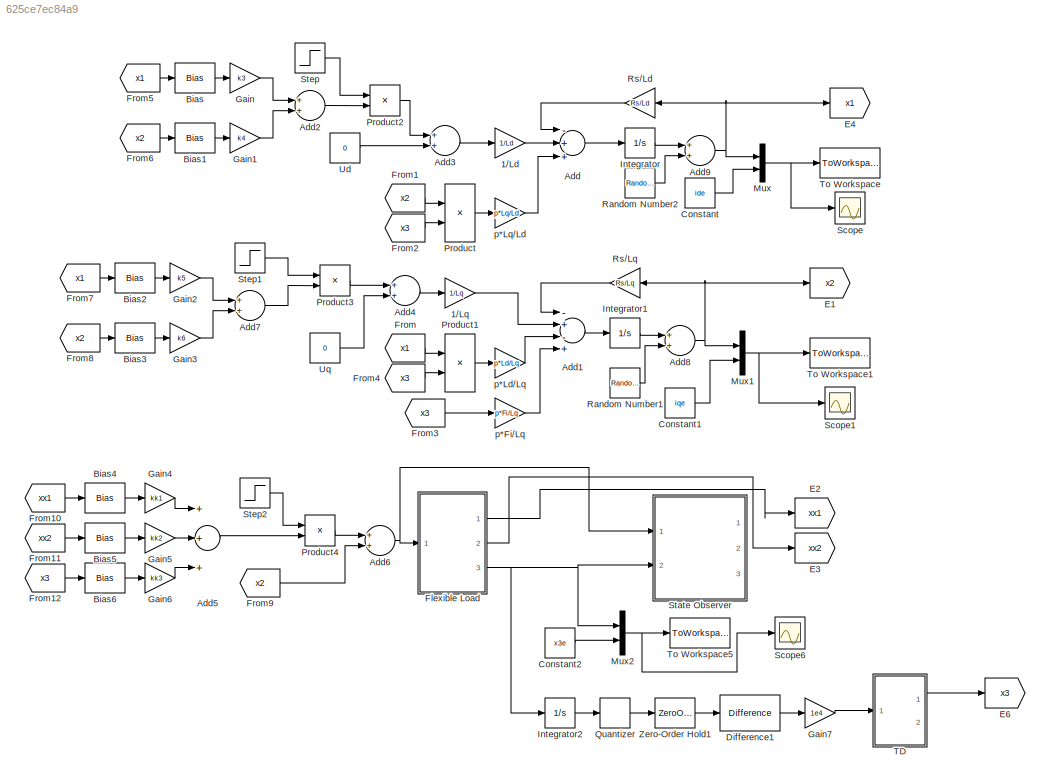
MODEL slx_625ce7ec84a9
KIND model
CONFIG AbsTol = auto
CONFIG EnableMultiTasking = off
CONFIG FixedStep = 1e-4
CONFIG InitFcn = Rs = 0.011\nLd = 0.018\nLq = 0.018\nFi = 0.055\np = 4\nJ = 0.102\nb = 0.18\n\nA1 = 1\nB1 = -5000\nB2 = -0.0200 \nB3 = 10\nC1 = 500\nC2 = -2.499999800000000e+04\nC3 = -90.999999999999990 \nC4 = 110\n\ntC = 20\nkk1 = -211\nkk2 = -15\nkk3 = -2.3\nk3 = -1.586440829524976\nk4 = -0.541242258944882\nk5 = -0.541242258944882\nk6 = -0.328094464592671\n\nx1e = 0.001479483606571\nx2e = 0\nx3e = 0.739741803285525\nide = 2.930555555555555\n...<+110ch>
CONFIG MaxStep = 1e-4
CONFIG MinStep = 1e-8
CONFIG RelTol = 1e-10
CONFIG SampleTimeConstraint = Unconstrained
CONFIG Solver = ode4
CONFIG SolverName = ode4
CONFIG StartTime = 0.0
CONFIG StopTime = 50
BLOCK [Gain] 1//Ld
  Gain = 1/Ld
  OutDataTypeStr = Inherit: Inherit via internal rule
  ParamDataTypeStr = Inherit: Inherit via internal rule
  SaturateOnIntegerOverflow = off
BLOCK [Gain] 1//Lq
  Gain = 1/Lq
  OutDataTypeStr = Inherit: Inherit via internal rule
  ParamDataTypeStr = Inherit: Inherit via internal rule
  SaturateOnIntegerOverflow = off
BLOCK [Sum] Add
  InputSameDT = off
  Inputs = -++
  OutDataTypeStr = Inherit: Inherit via internal rule
  Ports = [3, 1]
  SaturateOnIntegerOverflow = off
BLOCK [Sum] Add1
  InputSameDT = off
  Inputs = -+-+
  OutDataTypeStr = Inherit: Inherit via internal rule
  Ports = [4, 1]
  SaturateOnIntegerOverflow = off
BLOCK [Sum] Add2
  InputSameDT = off
  OutDataTypeStr = Inherit: Inherit via internal rule
  Ports = [2, 1]
  SaturateOnIntegerOverflow = off
BLOCK [Sum] Add3
  InputSameDT = off
  OutDataTypeStr = Inherit: Inherit via internal rule
  Ports = [2, 1]
  SaturateOnIntegerOverflow = off
BLOCK [Sum] Add4
  InputSameDT = off
  OutDataTypeStr = Inherit: Inherit via internal rule
  Ports = [2, 1]
  SaturateOnIntegerOverflow = off
BLOCK [Sum] Add5
  InputSameDT = off
  Inputs = +++
  OutDataTypeStr = Inherit: Inherit via internal rule
  Ports = [3, 1]
  SaturateOnIntegerOverflow = off
BLOCK [Sum] Add6
  InputSameDT = off
  OutDataTypeStr = Inherit: Inherit via internal rule
  Ports = [2, 1]
  SaturateOnIntegerOverflow = off
BLOCK [Sum] Add7
  InputSameDT = off
  OutDataTypeStr = Inherit: Inherit via internal rule
  Ports = [2, 1]
  SaturateOnIntegerOverflow = off
BLOCK [Sum] Add8
  InputSameDT = off
  OutDataTypeStr = Inherit: Inherit via internal rule
  Ports = [2, 1]
  SaturateOnIntegerOverflow = off
BLOCK [Sum] Add9
  InputSameDT = off
  OutDataTypeStr = Inherit: Inherit via internal rule
  Ports = [2, 1]
  SaturateOnIntegerOverflow = off
BLOCK [Bias] Bias
  Bias = -ide
  SaturateOnIntegerOverflow = off
BLOCK [Bias] Bias1
  Bias = -iqe
  SaturateOnIntegerOverflow = off
BLOCK [Bias] Bias2
  Bias = -ide
  SaturateOnIntegerOverflow = off
BLOCK [Bias] Bias3
  Bias = -iqe
  SaturateOnIntegerOverflow = off
BLOCK [Bias] Bias4
  Bias = -x1e
  SaturateOnIntegerOverflow = off
BLOCK [Bias] Bias5
  Bias = -x2e
  SaturateOnIntegerOverflow = off
BLOCK [Bias] Bias6
  Bias = -x3e
  SaturateOnIntegerOverflow = off
BLOCK [Constant] Constant
  Value = ide
BLOCK [Constant] Constant1
  Value = iqe
BLOCK [Constant] Constant2
  Value = x3e
BLOCK [Reference] Difference1  REF=simulink/Discrete/Difference
  Ports = [1, 1]
  SourceBlock = simulink/Discrete/Difference
  SourceProductBaseCode = SL
  SourceProductName = Simulink
  SourceType = Difference
BLOCK [Goto] E1
  GotoTag = x2
BLOCK [Goto] E2
  GotoTag = xx1
BLOCK [Goto] E3
  GotoTag = xx2
BLOCK [Goto] E4
  GotoTag = x1
BLOCK [Goto] E6
  GotoTag = x3
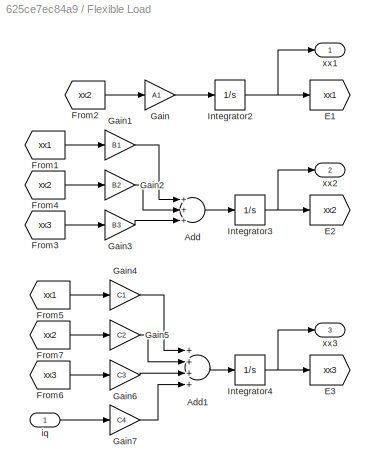
BLOCK [SubSystem] Flexible Load
  Ports = [1, 3]
  RequestExecContextInheritance = off
BLOCK [Sum] Flexible Load/Add
  InputSameDT = off
  Inputs = +++
  OutDataTypeStr = Inherit: Inherit via internal rule
  Ports = [3, 1]
  SaturateOnIntegerOverflow = off
BLOCK [Sum] Flexible Load/Add1
  InputSameDT = off
  Inputs = ++++
  OutDataTypeStr = Inherit: Inherit via internal rule
  Ports = [4, 1]
  SaturateOnIntegerOverflow = off
BLOCK [Goto] Flexible Load/E1
  GotoTag = xx1
BLOCK [Goto] Flexible Load/E2
  GotoTag = xx2
BLOCK [Goto] Flexible Load/E3
  GotoTag = xx3
BLOCK [From] Flexible Load/From1
  GotoTag = xx1
BLOCK [From] Flexible Load/From2
  GotoTag = xx2
BLOCK [From] Flexible Load/From3
  GotoTag = xx3
BLOCK [From] Flexible Load/From4
  GotoTag = xx2
BLOCK [From] Flexible Load/From5
  GotoTag = xx1
BLOCK [From] Flexible Load/From6
  GotoTag = xx3
BLOCK [From] Flexible Load/From7
  GotoTag = xx2
BLOCK [Gain] Flexible Load/Gain
  Gain = A1
  OutDataTypeStr = Inherit: Inherit via internal rule
  ParamDataTypeStr = Inherit: Inherit via internal rule
  SaturateOnIntegerOverflow = off
BLOCK [Gain] Flexible Load/Gain1
  Gain = B1
  OutDataTypeStr = Inherit: Inherit via internal rule
  ParamDataTypeStr = Inherit: Inherit via internal rule
  SaturateOnIntegerOverflow = off
BLOCK [Gain] Flexible Load/Gain2
  Gain = B2
  OutDataTypeStr = Inherit: Inherit via internal rule
  ParamDataTypeStr = Inherit: Inherit via internal rule
  SaturateOnIntegerOverflow = off
BLOCK [Gain] Flexible Load/Gain3
  Gain = B3
  OutDataTypeStr = Inherit: Inherit via internal rule
  ParamDataTypeStr = Inherit: Inherit via internal rule
  SaturateOnIntegerOverflow = off
BLOCK [Gain] Flexible Load/Gain4
  Gain = C1
  OutDataTypeStr = Inherit: Inherit via internal rule
  ParamDataTypeStr = Inherit: Inherit via internal rule
  SaturateOnIntegerOverflow = off
BLOCK [Gain] Flexible Load/Gain5
  Gain = C2
  OutDataTypeStr = Inherit: Inherit via internal rule
  ParamDataTypeStr = Inherit: Inherit via internal rule
  SaturateOnIntegerOverflow = off
BLOCK [Gain] Flexible Load/Gain6
  Gain = C3
  OutDataTypeStr = Inherit: Inherit via internal rule
  ParamDataTypeStr = Inherit: Inherit via internal rule
  SaturateOnIntegerOverflow = off
BLOCK [Gain] Flexible Load/Gain7
  Gain = C4
  OutDataTypeStr = Inherit: Inherit via internal rule
  ParamDataTypeStr = Inherit: Inherit via internal rule
  SaturateOnIntegerOverflow = off
BLOCK [Integrator] Flexible Load/Integrator2
  Ports = [1, 1]
BLOCK [Integrator] Flexible Load/Integrator3
  Ports = [1, 1]
BLOCK [Integrator] Flexible Load/Integrator4
  Ports = [1, 1]
BLOCK [Inport] Flexible Load/iq
  IconDisplay = Port number
BLOCK [Outport] Flexible Load/xx1
  IconDisplay = Port number
BLOCK [Outport] Flexible Load/xx2
  IconDisplay = Port number
  Port = 2
BLOCK [Outport] Flexible Load/xx3
  IconDisplay = Port number
  Port = 3
BLOCK [From] From
  GotoTag = x1
BLOCK [From] From1
  GotoTag = x2
BLOCK [From] From10
  GotoTag = xx1
BLOCK [From] From11
  GotoTag = xx2
BLOCK [From] From12
  GotoTag = x3
BLOCK [From] From2
  GotoTag = x3
BLOCK [From] From3
  GotoTag = x3
BLOCK [From] From4
  GotoTag = x3
BLOCK [From] From5
  GotoTag = x1
BLOCK [From] From6
  GotoTag = x2
BLOCK [From] From7
  GotoTag = x1
BLOCK [From] From8
  GotoTag = x2
BLOCK [From] From9
  GotoTag = x2
BLOCK [Gain] Gain
  Gain = k3
  OutDataTypeStr = Inherit: Inherit via internal rule
  ParamDataTypeStr = Inherit: Inherit via internal rule
  SaturateOnIntegerOverflow = off
BLOCK [Gain] Gain1
  Gain = k4
  OutDataTypeStr = Inherit: Inherit via internal rule
  ParamDataTypeStr = Inherit: Inherit via internal rule
  SaturateOnIntegerOverflow = off
BLOCK [Gain] Gain2
  Gain = k5
  OutDataTypeStr = Inherit: Inherit via internal rule
  ParamDataTypeStr = Inherit: Inherit via internal rule
  SaturateOnIntegerOverflow = off
BLOCK [Gain] Gain3
  Gain = k6
  OutDataTypeStr = Inherit: Inherit via internal rule
  ParamDataTypeStr = Inherit: Inherit via internal rule
  SaturateOnIntegerOverflow = off
BLOCK [Gain] Gain4
  Gain = kk1
  OutDataTypeStr = Inherit: Inherit via internal rule
  ParamDataTypeStr = Inherit: Inherit via internal rule
  SaturateOnIntegerOverflow = off
BLOCK [Gain] Gain5
  Gain = kk2
  OutDataTypeStr = Inherit: Inherit via internal rule
  ParamDataTypeStr = Inherit: Inherit via internal rule
  SaturateOnIntegerOverflow = off
BLOCK [Gain] Gain6
  Gain = kk3
  OutDataTypeStr = Inherit: Inherit via internal rule
  ParamDataTypeStr = Inherit: Inherit via internal rule
  SaturateOnIntegerOverflow = off
BLOCK [Gain] Gain7
  Gain = 1e4
  OutDataTypeStr = Inherit: Inherit via internal rule
  ParamDataTypeStr = Inherit: Inherit via internal rule
  SaturateOnIntegerOverflow = off
BLOCK [Integrator] Integrator
  InitialCondition = 0.15
  Ports = [1, 1]
BLOCK [Integrator] Integrator1
  InitialCondition = 0.14
  Ports = [1, 1]
BLOCK [Integrator] Integrator2
  Ports = [1, 1]
BLOCK [Mux] Mux
  DisplayOption = bar
  Inputs = 2
  Ports = [2, 1]
BLOCK [Mux] Mux1
  DisplayOption = bar
  Inputs = 2
  Ports = [2, 1]
BLOCK [Mux] Mux2
  DisplayOption = bar
  Inputs = 2
  Ports = [2, 1]
BLOCK [Product] Product
  InputSameDT = off
  OutDataTypeStr = Inherit: Inherit via internal rule
  Ports = [2, 1]
  RndMeth = Floor
  SaturateOnIntegerOverflow = off
BLOCK [Product] Product1
  InputSameDT = off
  OutDataTypeStr = Inherit: Inherit via internal rule
  Ports = [2, 1]
  RndMeth = Floor
  SaturateOnIntegerOverflow = off
BLOCK [Product] Product2
  InputSameDT = off
  OutDataTypeStr = Inherit: Inherit via internal rule
  Ports = [2, 1]
  RndMeth = Floor
  SaturateOnIntegerOverflow = off
BLOCK [Product] Product3
  InputSameDT = off
  OutDataTypeStr = Inherit: Inherit via internal rule
  Ports = [2, 1]
  RndMeth = Floor
  SaturateOnIntegerOverflow = off
BLOCK [Product] Product4
  InputSameDT = off
  OutDataTypeStr = Inherit: Inherit via internal rule
  Ports = [2, 1]
  RndMeth = Floor
  SaturateOnIntegerOverflow = off
BLOCK [Quantizer] Quantizer
  QuantizationInterval = 2*pi/31488
BLOCK [RandomNumber] Random Number1
  SampleTime = 0.0005
  Variance = 0
BLOCK [RandomNumber] Random Number2
  SampleTime = 0.0005
  Variance = 0
BLOCK [Gain] Rs//Ld
  Gain = Rs/Ld
  OutDataTypeStr = Inherit: Inherit via internal rule
  ParamDataTypeStr = Inherit: Inherit via internal rule
  SaturateOnIntegerOverflow = off
BLOCK [Gain] Rs//Lq
  Gain = Rs/Lq
  OutDataTypeStr = Inherit: Inherit via internal rule
  ParamDataTypeStr = Inherit: Inherit via internal rule
  SaturateOnIntegerOverflow = off
BLOCK [Scope] Scope
  Floating = off
  NumInputPorts = 1
  Ports = [1]
  ScopeSpecificationString = Simulink.scopes.TimeScopeBlockCfg('CurrentConfiguration', extmgr.ConfigurationSet(extmgr.Configuration('Core','General UI',true),extmgr.Configuration('Core','Source UI',true),extmgr.Configuration('Sources','WiredSimulink',true),extmgr.Configuration('Visuals','Time Domain',true,'SerializedDisplays',{struct('MinYLimReal','-0.49462','MaxYLimReal','5.79468','YLabelReal','','MinYLimMag','0.00000','MaxY...<+1379ch>
BLOCK [Scope] Scope1
  Floating = off
  NumInputPorts = 1
  Ports = [1]
  ScopeSpecificationString = Simulink.scopes.TimeScopeBlockCfg('CurrentConfiguration', extmgr.ConfigurationSet(extmgr.Configuration('Core','General UI',true),extmgr.Configuration('Core','Source UI',true),extmgr.Configuration('Sources','WiredSimulink',true,'DataLoggingVariableName','ScopeData1'),extmgr.Configuration('Visuals','Time Domain',true,'SerializedDisplays',{struct('MinYLimReal','-2.11325','MaxYLimReal','3.27008','YLab...<+1419ch>
BLOCK [Scope] Scope6
  Floating = off
  NumInputPorts = 1
  Ports = [1]
  ScopeSpecificationString = Simulink.scopes.TimeScopeBlockCfg('CurrentConfiguration', extmgr.ConfigurationSet(extmgr.Configuration('Core','General UI',true),extmgr.Configuration('Core','Source UI',true),extmgr.Configuration('Sources','WiredSimulink',true,'DataLoggingVariableName','ScopeData2'),extmgr.Configuration('Visuals','Time Domain',true,'SerializedDisplays',{struct('MinYLimReal','-1.89139','MaxYLimReal','2.1849','YLabe...<+1476ch>
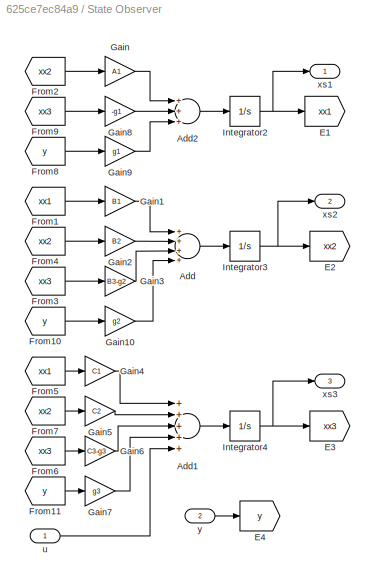
BLOCK [SubSystem] State Observer
  Ports = [2, 3]
  RequestExecContextInheritance = off
BLOCK [Sum] State Observer/Add
  InputSameDT = off
  Inputs = ++++
  OutDataTypeStr = Inherit: Inherit via internal rule
  Ports = [4, 1]
  SaturateOnIntegerOverflow = off
BLOCK [Sum] State Observer/Add1
  InputSameDT = off
  Inputs = +++++
  OutDataTypeStr = Inherit: Inherit via internal rule
  Ports = [5, 1]
  SaturateOnIntegerOverflow = off
BLOCK [Sum] State Observer/Add2
  InputSameDT = off
  Inputs = +++
  OutDataTypeStr = Inherit: Inherit via internal rule
  Ports = [3, 1]
  SaturateOnIntegerOverflow = off
BLOCK [Goto] State Observer/E1
  GotoTag = xx1
BLOCK [Goto] State Observer/E2
  GotoTag = xx2
BLOCK [Goto] State Observer/E3
  GotoTag = xx3
BLOCK [Goto] State Observer/E4
  GotoTag = y
BLOCK [From] State Observer/From1
  GotoTag = xx1
BLOCK [From] State Observer/From10
  GotoTag = y
BLOCK [From] State Observer/From11
  GotoTag = y
BLOCK [From] State Observer/From2
  GotoTag = xx2
BLOCK [From] State Observer/From3
  GotoTag = xx3
BLOCK [From] State Observer/From4
  GotoTag = xx2
BLOCK [From] State Observer/From5
  GotoTag = xx1
BLOCK [From] State Observer/From6
  GotoTag = xx3
BLOCK [From] State Observer/From7
  GotoTag = xx2
BLOCK [From] State Observer/From8
  GotoTag = y
BLOCK [From] State Observer/From9
  GotoTag = xx3
BLOCK [Gain] State Observer/Gain
  Gain = A1
  OutDataTypeStr = Inherit: Inherit via internal rule
  ParamDataTypeStr = Inherit: Inherit via internal rule
  SaturateOnIntegerOverflow = off
BLOCK [Gain] State Observer/Gain1
  Gain = B1
  OutDataTypeStr = Inherit: Inherit via internal rule
  ParamDataTypeStr = Inherit: Inherit via internal rule
  SaturateOnIntegerOverflow = off
BLOCK [Gain] State Observer/Gain10
  Gain = g2
  OutDataTypeStr = Inherit: Inherit via internal rule
  ParamDataTypeStr = Inherit: Inherit via internal rule
  SaturateOnIntegerOverflow = off
BLOCK [Gain] State Observer/Gain2
  Gain = B2
  OutDataTypeStr = Inherit: Inherit via internal rule
  ParamDataTypeStr = Inherit: Inherit via internal rule
  SaturateOnIntegerOverflow = off
BLOCK [Gain] State Observer/Gain3
  Gain = B3-g2
  OutDataTypeStr = Inherit: Inherit via internal rule
  ParamDataTypeStr = Inherit: Inherit via internal rule
  SaturateOnIntegerOverflow = off
BLOCK [Gain] State Observer/Gain4
  Gain = C1
  OutDataTypeStr = Inherit: Inherit via internal rule
  ParamDataTypeStr = Inherit: Inherit via internal rule
  SaturateOnIntegerOverflow = off
BLOCK [Gain] State Observer/Gain5
  Gain = C2
  OutDataTypeStr = Inherit: Inherit via internal rule
  ParamDataTypeStr = Inherit: Inherit via internal rule
  SaturateOnIntegerOverflow = off
BLOCK [Gain] State Observer/Gain6
  Gain = C3-g3
  OutDataTypeStr = Inherit: Inherit via internal rule
  ParamDataTypeStr = Inherit: Inherit via internal rule
  SaturateOnIntegerOverflow = off
BLOCK [Gain] State Observer/Gain7
  Gain = g3
  OutDataTypeStr = Inherit: Inherit via internal rule
  ParamDataTypeStr = Inherit: Inherit via internal rule
  SaturateOnIntegerOverflow = off
BLOCK [Gain] State Observer/Gain8
  Gain = -g1
  OutDataTypeStr = Inherit: Inherit via internal rule
  ParamDataTypeStr = Inherit: Inherit via internal rule
  SaturateOnIntegerOverflow = off
BLOCK [Gain] State Observer/Gain9
  Gain = g1
  OutDataTypeStr = Inherit: Inherit via internal rule
  ParamDataTypeStr = Inherit: Inherit via internal rule
  SaturateOnIntegerOverflow = off
BLOCK [Integrator] State Observer/Integrator2
  Ports = [1, 1]
BLOCK [Integrator] State Observer/Integrator3
  Ports = [1, 1]
BLOCK [Integrator] State Observer/Integrator4
  Ports = [1, 1]
BLOCK [Inport] State Observer/u
  IconDisplay = Port number
BLOCK [Outport] State Observer/xs1
  IconDisplay = Port number
BLOCK [Outport] State Observer/xs2
  IconDisplay = Port number
  Port = 2
BLOCK [Outport] State Observer/xs3
  IconDisplay = Port number
  Port = 3
BLOCK [Inport] State Observer/y
  IconDisplay = Port number
  Port = 2
BLOCK [Step] Step
  SampleTime = 0
  Time = tC
BLOCK [Step] Step1
  SampleTime = 0
  Time = tC
BLOCK [Step] Step2
  SampleTime = 0
  Time = tC
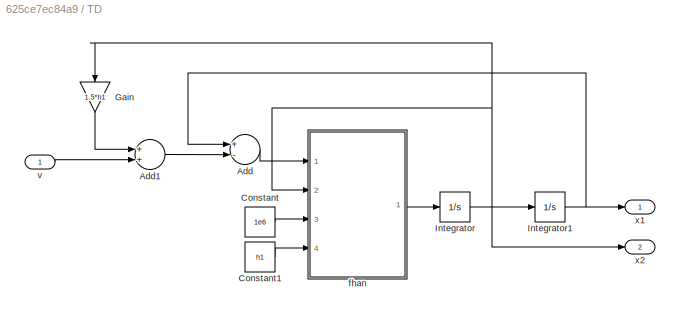
BLOCK [SubSystem] TD
  Ports = [1, 2]
  RequestExecContextInheritance = off
BLOCK [Sum] TD/Add
  InputSameDT = off
  Inputs = +-
  OutDataTypeStr = Inherit: Inherit via internal rule
  Ports = [2, 1]
  SaturateOnIntegerOverflow = off
BLOCK [Sum] TD/Add1
  InputSameDT = off
  OutDataTypeStr = Inherit: Inherit via internal rule
  Ports = [2, 1]
  SaturateOnIntegerOverflow = off
BLOCK [Constant] TD/Constant
  Value = 1e6
BLOCK [Constant] TD/Constant1
  Value = h1
BLOCK [Gain] TD/Gain
  Gain = 1.5*h1
  OutDataTypeStr = Inherit: Inherit via internal rule
  ParamDataTypeStr = Inherit: Inherit via internal rule
  SaturateOnIntegerOverflow = off
BLOCK [Integrator] TD/Integrator
  Ports = [1, 1]
BLOCK [Integrator] TD/Integrator1
  Ports = [1, 1]
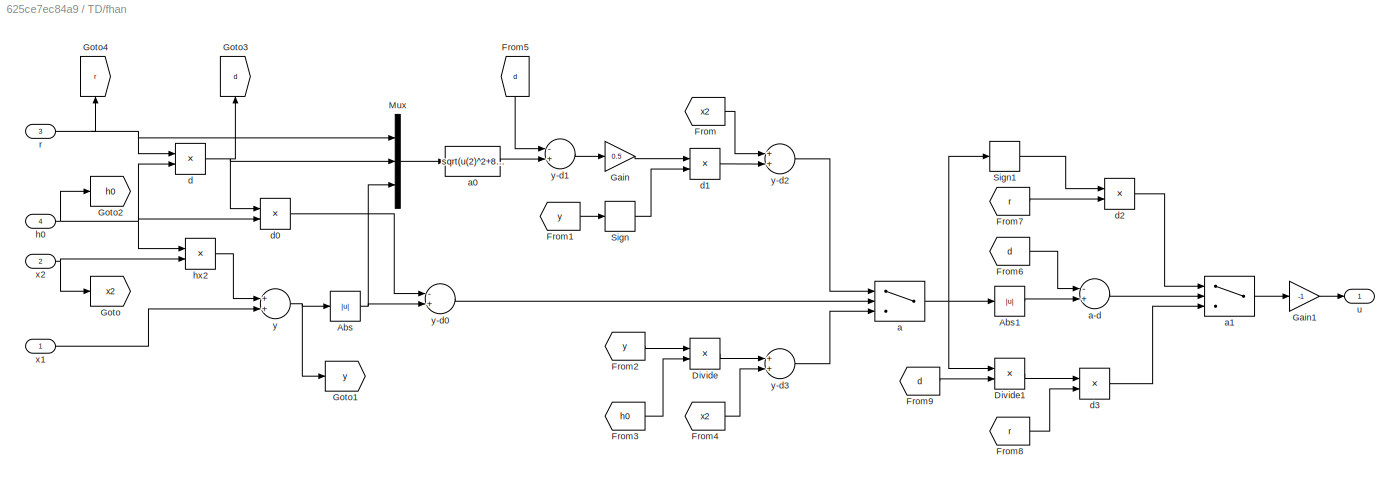
BLOCK [SubSystem] TD/fhan
  Ports = [4, 1]
  RequestExecContextInheritance = off
BLOCK [Abs] TD/fhan/Abs
  SaturateOnIntegerOverflow = off
BLOCK [Abs] TD/fhan/Abs1
  SaturateOnIntegerOverflow = off
BLOCK [Product] TD/fhan/Divide
  InputSameDT = off
  Inputs = */
  OutDataTypeStr = Inherit: Inherit via internal rule
  Ports = [2, 1]
  RndMeth = Floor
  SaturateOnIntegerOverflow = off
BLOCK [Product] TD/fhan/Divide1
  InputSameDT = off
  Inputs = */
  OutDataTypeStr = Inherit: Inherit via internal rule
  Ports = [2, 1]
  RndMeth = Floor
  SaturateOnIntegerOverflow = off
BLOCK [From] TD/fhan/From
  GotoTag = x2
BLOCK [From] TD/fhan/From1
  GotoTag = y
BLOCK [From] TD/fhan/From2
  GotoTag = y
BLOCK [From] TD/fhan/From3
  GotoTag = h0
BLOCK [From] TD/fhan/From4
  GotoTag = x2
BLOCK [From] TD/fhan/From5
  GotoTag = d
BLOCK [From] TD/fhan/From6
  GotoTag = d
BLOCK [From] TD/fhan/From7
  GotoTag = r
BLOCK [From] TD/fhan/From8
  GotoTag = r
BLOCK [From] TD/fhan/From9
  GotoTag = d
BLOCK [Gain] TD/fhan/Gain
  Gain = 0.5
  OutDataTypeStr = Inherit: Inherit via internal rule
  ParamDataTypeStr = Inherit: Inherit via internal rule
  SaturateOnIntegerOverflow = off
BLOCK [Gain] TD/fhan/Gain1
  Gain = -1
  OutDataTypeStr = Inherit: Inherit via internal rule
  ParamDataTypeStr = Inherit: Inherit via internal rule
  SaturateOnIntegerOverflow = off
BLOCK [Goto] TD/fhan/Goto
  GotoTag = x2
BLOCK [Goto] TD/fhan/Goto1
  GotoTag = y
BLOCK [Goto] TD/fhan/Goto2
  GotoTag = h0
BLOCK [Goto] TD/fhan/Goto3
  GotoTag = d
BLOCK [Goto] TD/fhan/Goto4
  GotoTag = r
BLOCK [Mux] TD/fhan/Mux
  DisplayOption = bar
  Inputs = 3
  Ports = [3, 1]
BLOCK [Signum] TD/fhan/Sign
BLOCK [Signum] TD/fhan/Sign1
BLOCK [Switch] TD/fhan/a
  Criteria = u2 > Threshold
  InputSameDT = off
  SaturateOnIntegerOverflow = off
BLOCK [Sum] TD/fhan/a-d
  InputSameDT = off
  Inputs = -+
  OutDataTypeStr = Inherit: Inherit via internal rule
  Ports = [2, 1]
  SaturateOnIntegerOverflow = off
BLOCK [Fcn] TD/fhan/a0
  Expr = sqrt(u(2)^2+8*u(1)*u(3))
BLOCK [Switch] TD/fhan/a1
  Criteria = u2 > Threshold
  InputSameDT = off
  SaturateOnIntegerOverflow = off
BLOCK [Product] TD/fhan/d
  InputSameDT = off
  OutDataTypeStr = Inherit: Inherit via internal rule
  Ports = [2, 1]
  RndMeth = Floor
  SaturateOnIntegerOverflow = off
BLOCK [Product] TD/fhan/d0
  InputSameDT = off
  OutDataTypeStr = Inherit: Inherit via internal rule
  Ports = [2, 1]
  RndMeth = Floor
  SaturateOnIntegerOverflow = off
BLOCK [Product] TD/fhan/d1
  InputSameDT = off
  OutDataTypeStr = Inherit: Inherit via internal rule
  Ports = [2, 1]
  RndMeth = Floor
  SaturateOnIntegerOverflow = off
BLOCK [Product] TD/fhan/d2
  InputSameDT = off
  OutDataTypeStr = Inherit: Inherit via internal rule
  Ports = [2, 1]
  RndMeth = Floor
  SaturateOnIntegerOverflow = off
BLOCK [Product] TD/fhan/d3
  InputSameDT = off
  OutDataTypeStr = Inherit: Inherit via internal rule
  Ports = [2, 1]
  RndMeth = Floor
  SaturateOnIntegerOverflow = off
BLOCK [Inport] TD/fhan/h0
  IconDisplay = Port number
  Port = 4
BLOCK [Product] TD/fhan/hx2
  InputSameDT = off
  OutDataTypeStr = Inherit: Inherit via internal rule
  Ports = [2, 1]
  RndMeth = Floor
  SaturateOnIntegerOverflow = off
BLOCK [Inport] TD/fhan/r
  IconDisplay = Port number
  Port = 3
BLOCK [Outport] TD/fhan/u
  IconDisplay = Port number
BLOCK [Inport] TD/fhan/x1
  IconDisplay = Port number
BLOCK [Inport] TD/fhan/x2
  IconDisplay = Port number
  Port = 2
BLOCK [Sum] TD/fhan/y
  InputSameDT = off
  OutDataTypeStr = Inherit: Inherit via internal rule
  Ports = [2, 1]
  SaturateOnIntegerOverflow = off
BLOCK [Sum] TD/fhan/y-d0
  InputSameDT = off
  Inputs = -+
  OutDataTypeStr = Inherit: Inherit via internal rule
  Ports = [2, 1]
  SaturateOnIntegerOverflow = off
BLOCK [Sum] TD/fhan/y-d1
  InputSameDT = off
  Inputs = -+
  OutDataTypeStr = Inherit: Inherit via internal rule
  Ports = [2, 1]
  SaturateOnIntegerOverflow = off
BLOCK [Sum] TD/fhan/y-d2
  InputSameDT = off
  OutDataTypeStr = Inherit: Inherit via internal rule
  Ports = [2, 1]
  SaturateOnIntegerOverflow = off
BLOCK [Sum] TD/fhan/y-d3
  InputSameDT = off
  OutDataTypeStr = Inherit: Inherit via internal rule
  Ports = [2, 1]
  SaturateOnIntegerOverflow = off
BLOCK [Inport] TD/v
  IconDisplay = Port number
BLOCK [Outport] TD/x1
  IconDisplay = Port number
BLOCK [Outport] TD/x2
  IconDisplay = Port number
  Port = 2
BLOCK [ToWorkspace] To Workspace
  FixptAsFi = on
  MaxDataPoints = inf
  Ports = [1]
  SampleTime = -1
  Save2DSignal = 2-D array (concatenate along first dimension)
  VariableName = x1
BLOCK [ToWorkspace] To Workspace1
  FixptAsFi = on
  MaxDataPoints = inf
  Ports = [1]
  SampleTime = -1
  Save2DSignal = 2-D array (concatenate along first dimension)
  VariableName = x2
BLOCK [ToWorkspace] To Workspace5
  FixptAsFi = on
  MaxDataPoints = inf
  Ports = [1]
  SampleTime = -1
  Save2DSignal = 2-D array (concatenate along first dimension)
  VariableName = x3
BLOCK [Constant] Ud
  Value = 0
BLOCK [Constant] Uq
  Value = 0
BLOCK [ZeroOrderHold] Zero-Order Hold1
  SampleTime = 1e-4
BLOCK [Gain] p*Fi//Lq
  Gain = p*Fi/Lq
  OutDataTypeStr = Inherit: Inherit via internal rule
  ParamDataTypeStr = Inherit: Inherit via internal rule
  SaturateOnIntegerOverflow = off
BLOCK [Gain] p*Ld//Lq
  Gain = p*Ld/Lq
  OutDataTypeStr = Inherit: Inherit via internal rule
  ParamDataTypeStr = Inherit: Inherit via internal rule
  SaturateOnIntegerOverflow = off
BLOCK [Gain] p*Lq//Ld
  Gain = p*Lq/Ld
  OutDataTypeStr = Inherit: Inherit via internal rule
  ParamDataTypeStr = Inherit: Inherit via internal rule
  SaturateOnIntegerOverflow = off
LINE 1//Ld:1 -> Add:2
LINE 1//Lq:1 -> Add1:2
LINE Add1:1 -> Integrator1:1
LINE Add2:1 -> Product2:2
LINE Add3:1 -> 1//Ld:1
LINE Add4:1 -> 1//Lq:1
LINE Add5:1 -> Product4:2
NET Add6:1 -> Flexible Load:1, State Observer:1
LINE Add7:1 -> Product3:2
NET Add8:1 -> E1:1, Mux1:1, Rs//Lq:1
NET Add9:1 -> E4:1, Mux:1, Rs//Ld:1
LINE Add:1 -> Integrator:1
LINE Bias1:1 -> Gain1:1
LINE Bias2:1 -> Gain2:1
LINE Bias3:1 -> Gain3:1
LINE Bias4:1 -> Gain4:1
LINE Bias5:1 -> Gain5:1
LINE Bias6:1 -> Gain6:1
LINE Bias:1 -> Gain:1
LINE Constant1:1 -> Mux1:2
LINE Constant2:1 -> Mux2:2
LINE Constant:1 -> Mux:2
LINE Difference1:1 -> Gain7:1
LINE Flexible Load/Add1:1 -> Flexible Load/Integrator4:1
LINE Flexible Load/Add:1 -> Flexible Load/Integrator3:1
LINE Flexible Load/From1:1 -> Flexible Load/Gain1:1
LINE Flexible Load/From2:1 -> Flexible Load/Gain:1
LINE Flexible Load/From3:1 -> Flexible Load/Gain3:1
LINE Flexible Load/From4:1 -> Flexible Load/Gain2:1
LINE Flexible Load/From5:1 -> Flexible Load/Gain4:1
LINE Flexible Load/From6:1 -> Flexible Load/Gain6:1
LINE Flexible Load/From7:1 -> Flexible Load/Gain5:1
LINE Flexible Load/Gain1:1 -> Flexible Load/Add:1
LINE Flexible Load/Gain2:1 -> Flexible Load/Add:2
LINE Flexible Load/Gain3:1 -> Flexible Load/Add:3
LINE Flexible Load/Gain4:1 -> Flexible Load/Add1:1
LINE Flexible Load/Gain5:1 -> Flexible Load/Add1:2
LINE Flexible Load/Gain6:1 -> Flexible Load/Add1:3
LINE Flexible Load/Gain7:1 -> Flexible Load/Add1:4
LINE Flexible Load/Gain:1 -> Flexible Load/Integrator2:1
NET Flexible Load/Integrator2:1 -> Flexible Load/E1:1, Flexible Load/xx1:1
NET Flexible Load/Integrator3:1 -> Flexible Load/E2:1, Flexible Load/xx2:1
NET Flexible Load/Integrator4:1 -> Flexible Load/E3:1, Flexible Load/xx3:1
LINE Flexible Load/iq:1 -> Flexible Load/Gain7:1
LINE Flexible Load:1 -> E2:1
LINE Flexible Load:2 -> E3:1
NET Flexible Load:3 -> Integrator2:1, Mux2:1, State Observer:2
LINE From10:1 -> Bias4:1
LINE From11:1 -> Bias5:1
LINE From12:1 -> Bias6:1
LINE From1:1 -> Product:1
LINE From2:1 -> Product:2
LINE From3:1 -> p*Fi//Lq:1
LINE From4:1 -> Product1:2
LINE From5:1 -> Bias:1
LINE From6:1 -> Bias1:1
LINE From7:1 -> Bias2:1
LINE From8:1 -> Bias3:1
LINE From9:1 -> Add6:2
LINE From:1 -> Product1:1
LINE Gain1:1 -> Add2:2
LINE Gain2:1 -> Add7:1
LINE Gain3:1 -> Add7:2
LINE Gain4:1 -> Add5:1
LINE Gain5:1 -> Add5:2
LINE Gain6:1 -> Add5:3
LINE Gain7:1 -> TD:1
LINE Gain:1 -> Add2:1
LINE Integrator1:1 -> Add8:1
LINE Integrator2:1 -> Quantizer:1
LINE Integrator:1 -> Add9:1
NET Mux1:1 -> Scope1:1, To Workspace1:1
NET Mux2:1 -> Scope6:1, To Workspace5:1
NET Mux:1 -> Scope:1, To Workspace:1
LINE Product1:1 -> p*Ld//Lq:1
LINE Product2:1 -> Add3:1
LINE Product3:1 -> Add4:1
LINE Product4:1 -> Add6:1
LINE Product:1 -> p*Lq//Ld:1
LINE Quantizer:1 -> Zero-Order Hold1:1
LINE Random Number1:1 -> Add8:2
LINE Random Number2:1 -> Add9:2
LINE Rs//Ld:1 -> Add:1
LINE Rs//Lq:1 -> Add1:1
LINE State Observer/Add1:1 -> State Observer/Integrator4:1
LINE State Observer/Add2:1 -> State Observer/Integrator2:1
LINE State Observer/Add:1 -> State Observer/Integrator3:1
LINE State Observer/From10:1 -> State Observer/Gain10:1
LINE State Observer/From11:1 -> State Observer/Gain7:1
LINE State Observer/From1:1 -> State Observer/Gain1:1
LINE State Observer/From2:1 -> State Observer/Gain:1
LINE State Observer/From3:1 -> State Observer/Gain3:1
LINE State Observer/From4:1 -> State Observer/Gain2:1
LINE State Observer/From5:1 -> State Observer/Gain4:1
LINE State Observer/From6:1 -> State Observer/Gain6:1
LINE State Observer/From7:1 -> State Observer/Gain5:1
LINE State Observer/From8:1 -> State Observer/Gain9:1
LINE State Observer/From9:1 -> State Observer/Gain8:1
LINE State Observer/Gain10:1 -> State Observer/Add:4
LINE State Observer/Gain1:1 -> State Observer/Add:1
LINE State Observer/Gain2:1 -> State Observer/Add:2
LINE State Observer/Gain3:1 -> State Observer/Add:3
LINE State Observer/Gain4:1 -> State Observer/Add1:1
LINE State Observer/Gain5:1 -> State Observer/Add1:2
LINE State Observer/Gain6:1 -> State Observer/Add1:3
LINE State Observer/Gain7:1 -> State Observer/Add1:4
LINE State Observer/Gain8:1 -> State Observer/Add2:2
LINE State Observer/Gain9:1 -> State Observer/Add2:3
LINE State Observer/Gain:1 -> State Observer/Add2:1
NET State Observer/Integrator2:1 -> State Observer/E1:1, State Observer/xs1:1
NET State Observer/Integrator3:1 -> State Observer/E2:1, State Observer/xs2:1
NET State Observer/Integrator4:1 -> State Observer/E3:1, State Observer/xs3:1
LINE State Observer/u:1 -> State Observer/Add1:5
LINE State Observer/y:1 -> State Observer/E4:1
LINE Step1:1 -> Product3:1
LINE Step2:1 -> Product4:1
LINE Step:1 -> Product2:1
LINE TD/Add1:1 -> TD/Add:2
LINE TD/Add:1 -> TD/fhan:1
LINE TD/Constant1:1 -> TD/fhan:4
LINE TD/Constant:1 -> TD/fhan:3
LINE TD/Gain:1 -> TD/Add1:1
NET TD/Integrator1:1 -> TD/Add:1, TD/x1:1
NET TD/Integrator:1 -> TD/Gain:1, TD/Integrator1:1, TD/fhan:2, TD/x2:1
LINE TD/fhan/Abs1:1 -> TD/fhan/a-d:2
NET TD/fhan/Abs:1 -> TD/fhan/Mux:3, TD/fhan/y-d0:2
LINE TD/fhan/Divide1:1 -> TD/fhan/d3:1
LINE TD/fhan/Divide:1 -> TD/fhan/y-d3:1
LINE TD/fhan/From1:1 -> TD/fhan/Sign:1
LINE TD/fhan/From2:1 -> TD/fhan/Divide:1
LINE TD/fhan/From3:1 -> TD/fhan/Divide:2
LINE TD/fhan/From4:1 -> TD/fhan/y-d3:2
LINE TD/fhan/From5:1 -> TD/fhan/y-d1:1
LINE TD/fhan/From6:1 -> TD/fhan/a-d:1
LINE TD/fhan/From7:1 -> TD/fhan/d2:2
LINE TD/fhan/From8:1 -> TD/fhan/d3:2
LINE TD/fhan/From9:1 -> TD/fhan/Divide1:2
LINE TD/fhan/From:1 -> TD/fhan/y-d2:1
LINE TD/fhan/Gain1:1 -> TD/fhan/u:1
LINE TD/fhan/Gain:1 -> TD/fhan/d1:1
LINE TD/fhan/Mux:1 -> TD/fhan/a0:1
LINE TD/fhan/Sign1:1 -> TD/fhan/d2:1
LINE TD/fhan/Sign:1 -> TD/fhan/d1:2
LINE TD/fhan/a-d:1 -> TD/fhan/a1:2
LINE TD/fhan/a0:1 -> TD/fhan/y-d1:2
LINE TD/fhan/a1:1 -> TD/fhan/Gain1:1
NET TD/fhan/a:1 -> TD/fhan/Abs1:1, TD/fhan/Divide1:1, TD/fhan/Sign1:1
LINE TD/fhan/d0:1 -> TD/fhan/y-d0:1
LINE TD/fhan/d1:1 -> TD/fhan/y-d2:2
LINE TD/fhan/d2:1 -> TD/fhan/a1:1
LINE TD/fhan/d3:1 -> TD/fhan/a1:3
NET TD/fhan/d:1 -> TD/fhan/Goto3:1, TD/fhan/Mux:2, TD/fhan/d0:1
NET TD/fhan/h0:1 -> TD/fhan/Goto2:1, TD/fhan/d0:2, TD/fhan/d:2, TD/fhan/hx2:1
LINE TD/fhan/hx2:1 -> TD/fhan/y:1
NET TD/fhan/r:1 -> TD/fhan/Goto4:1, TD/fhan/Mux:1, TD/fhan/d:1
LINE TD/fhan/x1:1 -> TD/fhan/y:2
NET TD/fhan/x2:1 -> TD/fhan/Goto:1, TD/fhan/hx2:2
LINE TD/fhan/y-d0:1 -> TD/fhan/a:2
LINE TD/fhan/y-d1:1 -> TD/fhan/Gain:1
LINE TD/fhan/y-d2:1 -> TD/fhan/a:1
LINE TD/fhan/y-d3:1 -> TD/fhan/a:3
NET TD/fhan/y:1 -> TD/fhan/Abs:1, TD/fhan/Goto1:1
LINE TD/fhan:1 -> TD/Integrator:1
LINE TD/v:1 -> TD/Add1:2
LINE TD:1 -> E6:1
LINE Ud:1 -> Add3:2
LINE Uq:1 -> Add4:2
LINE Zero-Order Hold1:1 -> Difference1:1
LINE p*Fi//Lq:1 -> Add1:4
LINE p*Ld//Lq:1 -> Add1:3
LINE p*Lq//Ld:1 -> Add:3
note: NET lines group one-source signal fan-out (src -> all destinations, sorted); 1:1 wires keep LINE
